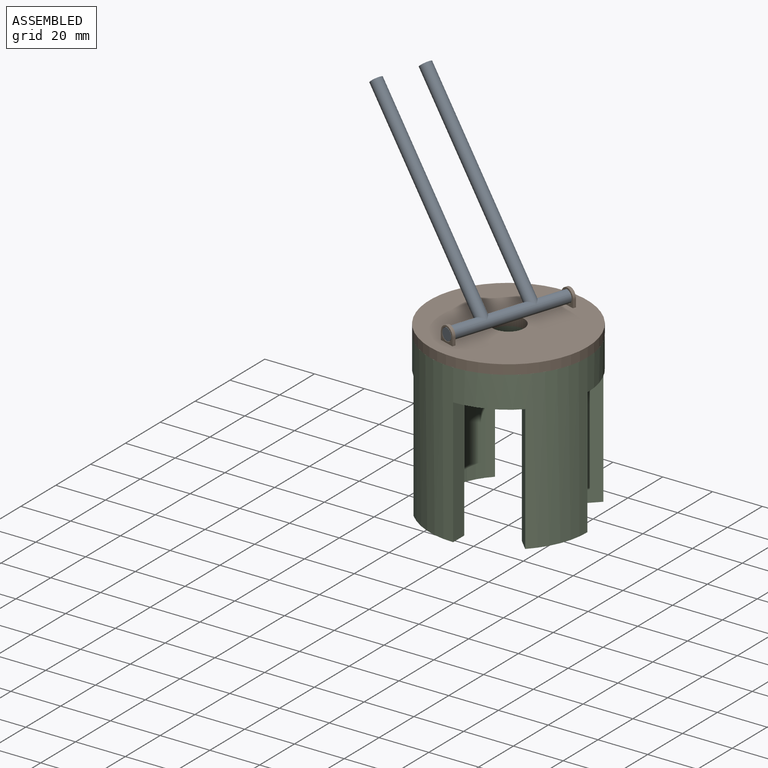
[diagram: assembled view]
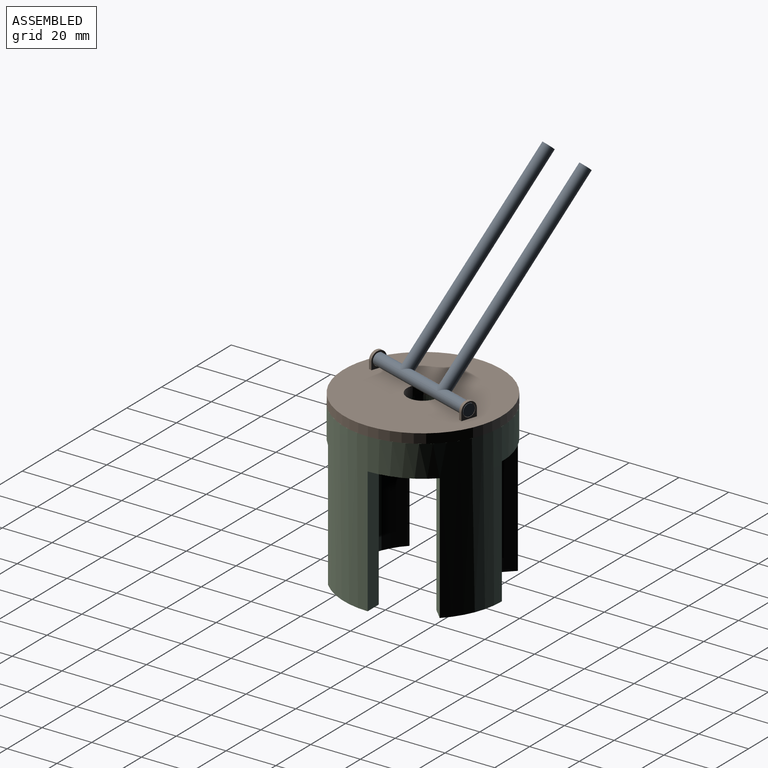
[diagram: assembled view, second angle]
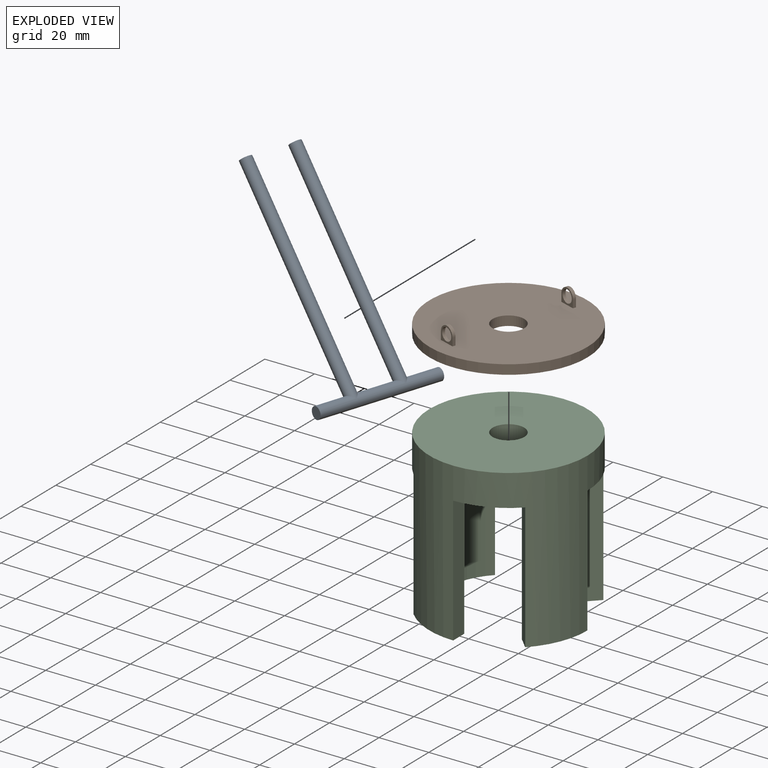
[diagram: exploded view]
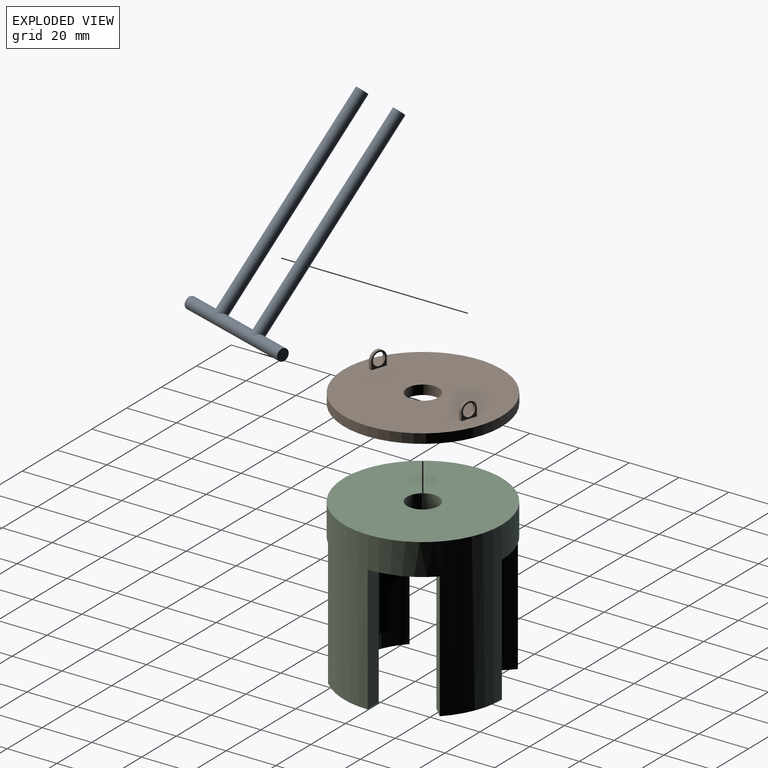
[diagram: exploded view, second angle]
ASSEMBLY  parts=3 mates=2
PART A: 7 faces, bbox 91.3x50.8x4.8 mm
  f0: cylinder r=2.41mm len=50.8mm, axis (0,1,0), area 723.6mm2, adj f1,f2,f3,f5
  f1: plane 4.83x4.83mm, normal (0,-1,0), area 18.3mm2, adj f0
  f2: plane 4.83x4.83mm, normal (0,1,0), area 18.3mm2, adj f0
  f3: cylinder r=2.41mm len=88.9mm, axis (-1,0,0), area 1324.6mm2, adj f0,f4
  f4: plane 4.83x4.83mm, normal (1,0,0), area 18.3mm2, adj f3
  f5: cylinder r=2.41mm len=88.9mm, axis (-1,0,0), area 1324.6mm2, adj f0,f6
  f6: plane 4.83x4.83mm, normal (1,0,0), area 18.3mm2, adj f5
PART B: 16 faces, bbox 63.5x63.5x10.2 mm
  f0: plane 3.18x1.27mm, normal (1,0,0), area 4mm2, adj f3,f5,f13,f15
  f1: plane 3.18x1.27mm, normal (-1,0,0), area 4mm2, adj f3,f5,f13,f15
  f2: cylinder r=2.54mm len=5.08mm, axis (0,1,0), area 20.3mm2, adj f13,f15
  f3: cylinder r=3.17mm len=6.35mm, axis (0,1,0), area 12.7mm2, adj f0,f1,f13,f15
  f4: cylinder r=31.75mm len=63.5mm, axis (0,0,-1), area 760.1mm2, adj f5,f6
  f5: plane 63.5x63.5mm, normal (0,0,1), area 3024.1mm2, adj f0,f1,f4,f7,f8,f10,f12,f13
  f6: plane 63.5x63.5mm, normal (0,0,-1), area 3040.2mm2, adj f4,f7
  f7: cylinder r=6.35mm len=12.7mm, axis (0,0,1), area 152mm2, adj f5,f6
  f8: plane 3.18x1.27mm, normal (1,0,0), area 4mm2, adj f5,f9,f12,f14
  f9: cylinder r=3.17mm len=6.35mm, axis (0,1,0), area 12.7mm2, adj f8,f10,f12,f14
  f10: plane 3.18x1.27mm, normal (-1,0,0), area 4mm2, adj f5,f9,f12,f14
  f11: cylinder r=2.54mm len=5.08mm, axis (0,1,0), area 20.3mm2, adj f12,f14
  f12: plane 6.35x6.35mm, normal (0,-1,0), area 15.7mm2, adj f5,f8,f9,f10,f11
  f13: plane 6.35x6.35mm, normal (0,1,0), area 15.7mm2, adj f0,f1,f2,f3,f5
  f14: plane 6.35x6.35mm, normal (0,1,0), area 15.7mm2, adj f5,f8,f9,f10,f11
  f15: plane 6.35x6.35mm, normal (0,-1,0), area 15.7mm2, adj f0,f1,f2,f3,f5
PART C: 20 faces, bbox 63.5x63.5x63.5 mm
  f0: plane 22.45x13.79mm, normal (0,0,-1), area 142.5mm2, adj f4,f8,f12,f18
  f1: plane 22.45x13.79mm, normal (0,0,-1), area 142.5mm2, adj f5,f8,f15,f17
  f2: plane 22.45x13.79mm, normal (0,0,-1), area 142.5mm2, adj f6,f8,f14,f16
  f3: plane 22.45x13.79mm, normal (0,0,-1), area 142.5mm2, adj f7,f8,f11,f13
  f4: cylinder r=25.4mm len=50.8mm, axis (0,0,-1), area 1013.4mm2, adj f0,f10,f12,f18
  f5: cylinder r=25.4mm len=50.8mm, axis (0,0,-1), area 1013.4mm2, adj f1,f10,f15,f17
  f6: cylinder r=25.4mm len=50.8mm, axis (0,0,-1), area 1013.4mm2, adj f2,f10,f14,f16
  f7: cylinder r=25.4mm len=50.8mm, axis (0,0,-1), area 1013.4mm2, adj f3,f10,f11,f13
  f8: cylinder r=31.75mm len=63.5mm, axis (0,0,-1), area 7600.6mm2, adj f0,f1,f2,f3,f9,f10,f11,f12
  f9: plane 63.5x63.5mm, normal (0,0,1), area 3040.2mm2, adj f8,f19
  f10: plane 63.5x63.5mm, normal (0,0,-1), area 2470.2mm2, adj f4,f5,f6,f7,f8,f11,f12,f13
  f11: plane 50.8x6.35mm, normal (0,-1,0), area 322.6mm2, adj f3,f7,f8,f10
  f12: plane 50.8x4.49mm, normal (-0.71,0.71,0), area 322.6mm2, adj f0,f4,f8,f10
  f13: plane 50.8x4.49mm, normal (0.71,0.71,0), area 322.6mm2, adj f3,f7,f8,f10
  f14: plane 50.8x6.35mm, normal (-1,0,0), area 322.6mm2, adj f2,f6,f8,f10
  f15: plane 50.8x6.35mm, normal (0,1,0), area 322.6mm2, adj f1,f5,f8,f10
  f16: plane 50.8x4.49mm, normal (0.71,-0.71,0), area 322.6mm2, adj f2,f6,f8,f10
  f17: plane 50.8x4.49mm, normal (-0.71,-0.71,0), area 322.6mm2, adj f1,f5,f8,f10
  f18: plane 50.8x6.35mm, normal (1,0,0), area 322.6mm2, adj f0,f4,f8,f10
  f19: cylinder r=6.35mm len=12.7mm, axis (0,0,1), area 506.7mm2, adj f9,f10
PLACE A rot(axis=(0.41,-0.07,0.91),163.4deg) t=(-48.07,-101.07,47.93)mm
PLACE B rot(axis=(0,0,1),161.8deg) t=(-40.13,-76.95,-22.56)mm
PLACE C t=(-40.13,-76.95,-22.56)mm fixed
MATE revolute A.f0 <-> B.f2  axis (0.31,0.95,0) through (-32.19,-52.82,47.93)mm
MATE revolute C.f4 <-> B.f4  axis (0,0,1) through (-40.13,-76.95,40.94)mm
